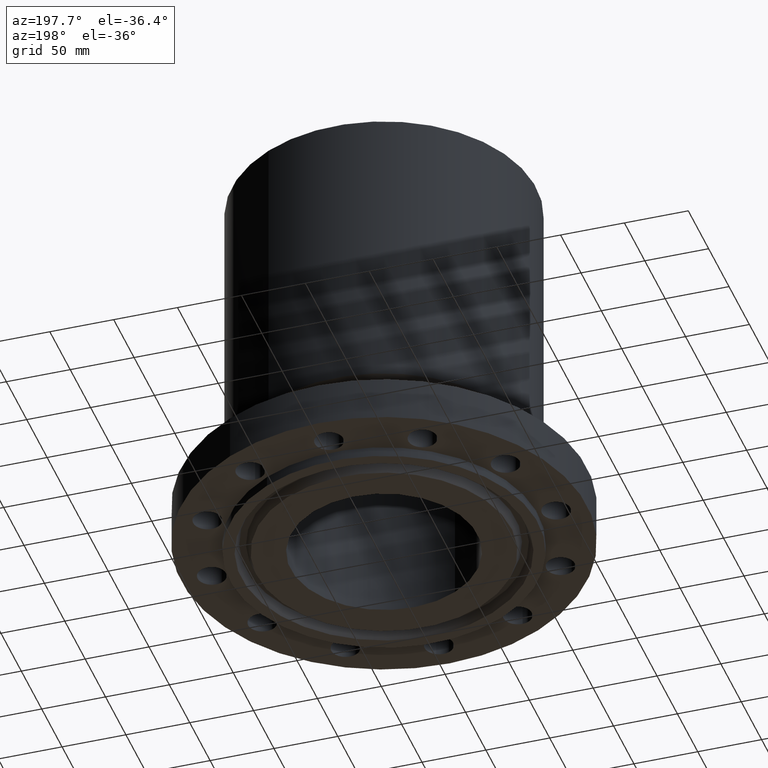
[diagram: clean part render]
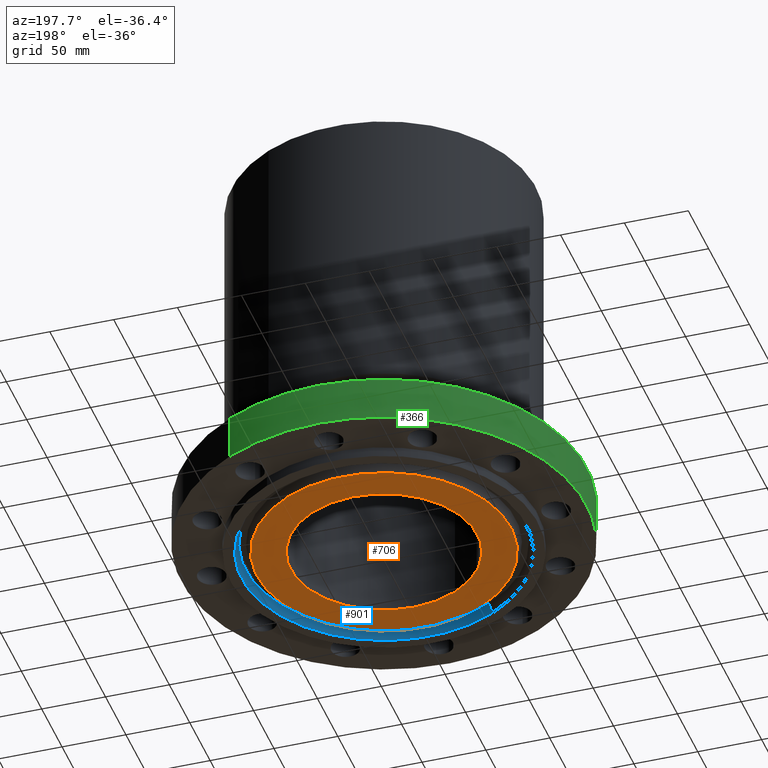
[diagram: same view with three faces highlighted in distinct colors, each labeled with its STEP entity id]
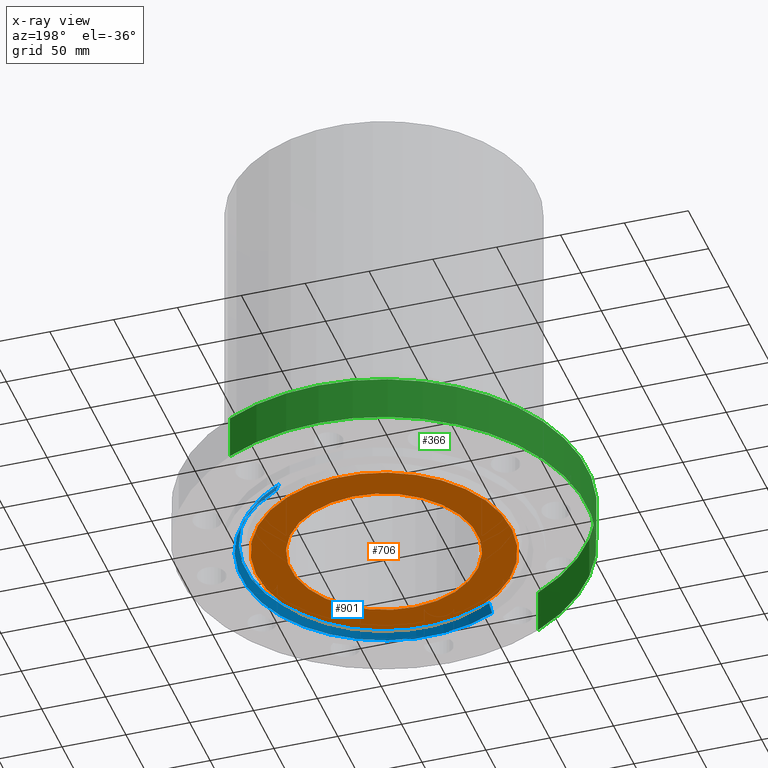
[diagram: x-ray of the same camera — body ghosted, the three highlighted faces saturated]
A machine part, auxiliary view with three faces highlighted in distinct colors.
The next image is the same camera in x-ray (body ghosted, the three faces saturated) — at least one of them is partly hidden behind the body in this view.
Their STEP definitions:

[orange] entity #706 — the highlighted planar face has unit normal (0, 0, -1).
#650=AXIS2_PLACEMENT_3D('Circle Axis2P3D',#648,#649,$) ;
#669=AXIS2_PLACEMENT_3D('Circle Axis2P3D',#667,#668,$) ;
#682=AXIS2_PLACEMENT_3D('Plane Axis2P3D',#679,#680,#681) ;
#686=AXIS2_PLACEMENT_3D('Circle Axis2P3D',#684,#685,$) ;
#695=AXIS2_PLACEMENT_3D('Circle Axis2P3D',#693,#694,$) ;
#645=CARTESIAN_POINT('Vertex',(1.38074555119,2.52743777825,-0.313000000001)) ;
#648=CARTESIAN_POINT('Axis2P3D Location',(0.,0.,-0.313000000001)) ;
#652=CARTESIAN_POINT('Vertex',(-1.38074555119,-2.52743777825,-0.313000000001)) ;
#667=CARTESIAN_POINT('Axis2P3D Location',(0.,0.,-0.313000000001)) ;
#679=CARTESIAN_POINT('Axis2P3D Location',(0.,3.92200000002,-0.313000000001)) ;
#684=CARTESIAN_POINT('Axis2P3D Location',(0.,0.,-0.313000000001)) ;
#688=CARTESIAN_POINT('Vertex',(-1.88030696241,-3.44187880775,-0.313000000001)) ;
#690=CARTESIAN_POINT('Vertex',(1.88030696241,3.44187880775,-0.313000000001)) ;
#693=CARTESIAN_POINT('Axis2P3D Location',(0.,0.,-0.313000000001)) ;
#649=DIRECTION('Axis2P3D Direction',(0.,0.,-0.0393700787402)) ;
#668=DIRECTION('Axis2P3D Direction',(0.,0.,-0.0393700787402)) ;
#680=DIRECTION('Axis2P3D Direction',(0.,0.,-0.0393700787402)) ;
#681=DIRECTION('Axis2P3D XDirection',(0.0393700787402,0.,0.)) ;
#685=DIRECTION('Axis2P3D Direction',(0.,0.,-0.0393700787402)) ;
#694=DIRECTION('Axis2P3D Direction',(0.,0.,-0.0393700787402)) ;
#699=ORIENTED_EDGE('',*,*,#692,.T.) ;
#700=ORIENTED_EDGE('',*,*,#697,.T.) ;
#703=ORIENTED_EDGE('',*,*,#654,.F.) ;
#704=ORIENTED_EDGE('',*,*,#671,.F.) ;
#705=FACE_BOUND('',#702,.T.) ;
#706=ADVANCED_FACE('PartBody',(#701,#705),#683,.T.) ;
#651=CIRCLE('generated circle',#650,2.88000000001) ;
#670=CIRCLE('generated circle',#669,2.88000000001) ;
#687=CIRCLE('generated circle',#686,3.92200000002) ;
#696=CIRCLE('generated circle',#695,3.92200000002) ;
#654=EDGE_CURVE('',#646,#653,#651,.T.) ;
#671=EDGE_CURVE('',#653,#646,#670,.T.) ;
#692=EDGE_CURVE('',#689,#691,#687,.T.) ;
#697=EDGE_CURVE('',#691,#689,#696,.T.) ;
#698=EDGE_LOOP('',(#699,#700)) ;
#702=EDGE_LOOP('',(#703,#704)) ;
#701=FACE_OUTER_BOUND('',#698,.T.) ;
#683=PLANE('',#682) ;
#646=VERTEX_POINT('',#645) ;
#653=VERTEX_POINT('',#652) ;
#689=VERTEX_POINT('',#688) ;
#691=VERTEX_POINT('',#690) ;

[blue] entity #901 — the highlighted conical surface has half-angle 23 deg.
#849=AXIS2_PLACEMENT_3D('Circle Axis2P3D',#847,#848,$) ;
#862=AXIS2_PLACEMENT_3D('Cone Axis2P3D',#859,#860,#861) ;
#892=AXIS2_PLACEMENT_3D('Circle Axis2P3D',#890,#891,$) ;
#825=CARTESIAN_POINT('Vertex',(-2.04530441643,-3.74390462143,-0.0188873350169)) ;
#832=CARTESIAN_POINT('Vertex',(2.04530441643,3.74390462143,-0.0188873350169)) ;
#847=CARTESIAN_POINT('Axis2P3D Location',(0.,0.,-0.0188873350169)) ;
#859=CARTESIAN_POINT('Axis2P3D Location',(0.,0.,-0.0188873350169)) ;
#864=CARTESIAN_POINT('Line Origine',(-2.07523097822,-3.79868482535,-0.165943667509)) ;
#868=CARTESIAN_POINT('Vertex',(-2.10515754002,-3.85346502928,-0.313000000001)) ;
#875=CARTESIAN_POINT('Vertex',(2.10515754002,3.85346502928,-0.313000000001)) ;
#878=CARTESIAN_POINT('Line Origine',(2.07523097822,3.79868482535,-0.165943667509)) ;
#890=CARTESIAN_POINT('Axis2P3D Location',(0.,0.,-0.313000000001)) ;
#848=DIRECTION('Axis2P3D Direction',(0.,0.,-0.0393700787402)) ;
#860=DIRECTION('Axis2P3D Direction',(0.,0.,-0.0393700787402)) ;
#861=DIRECTION('Axis2P3D XDirection',(0.0188750212049,0.0345504945626,0.)) ;
#865=DIRECTION('Vector Direction',(-0.00737505833565,-0.0134999537303,-0.0362403485611)) ;
#879=DIRECTION('Vector Direction',(0.00737505833565,0.0134999537303,-0.0362403485611)) ;
#891=DIRECTION('Axis2P3D Direction',(0.,0.,-0.0393700787402)) ;
#866=VECTOR('Line Direction',#865,0.0393700787402) ;
#880=VECTOR('Line Direction',#879,0.0393700787402) ;
#896=ORIENTED_EDGE('',*,*,#851,.F.) ;
#897=ORIENTED_EDGE('',*,*,#882,.T.) ;
#898=ORIENTED_EDGE('',*,*,#894,.T.) ;
#899=ORIENTED_EDGE('',*,*,#870,.F.) ;
#901=ADVANCED_FACE('PartBody',(#900),#863,.F.) ;
#850=CIRCLE('generated circle',#849,4.2661565806) ;
#893=CIRCLE('generated circle',#892,4.39100000002) ;
#863=CONICAL_SURFACE('Cone',#862,4.2661565806,0.401425727959) ;
#851=EDGE_CURVE('',#833,#826,#850,.T.) ;
#870=EDGE_CURVE('',#826,#869,#867,.T.) ;
#882=EDGE_CURVE('',#833,#876,#881,.T.) ;
#894=EDGE_CURVE('',#876,#869,#893,.T.) ;
#895=EDGE_LOOP('',(#896,#897,#898,#899)) ;
#900=FACE_OUTER_BOUND('',#895,.T.) ;
#867=LINE('Line',#864,#866) ;
#881=LINE('Line',#878,#880) ;
#826=VERTEX_POINT('',#825) ;
#833=VERTEX_POINT('',#832) ;
#869=VERTEX_POINT('',#868) ;
#876=VERTEX_POINT('',#875) ;

[green] entity #366 — the highlighted cylindrical surface (partial cylindrical patch) has radius 158.75 mm, axis along (0, 0, -1).
#82=AXIS2_PLACEMENT_3D('Circle Axis2P3D',#80,#81,$) ;
#339=AXIS2_PLACEMENT_3D('Cylinder Axis2P3D',#336,#337,#338) ;
#350=AXIS2_PLACEMENT_3D('Circle Axis2P3D',#348,#349,$) ;
#80=CARTESIAN_POINT('Axis2P3D Location',(0.,0.,0.)) ;
#84=CARTESIAN_POINT('Vertex',(-2.99640961629,-5.48489101184,1.1189649382E-015)) ;
#86=CARTESIAN_POINT('Vertex',(2.99640961629,5.48489101184,1.1189649382E-015)) ;
#336=CARTESIAN_POINT('Axis2P3D Location',(0.,0.,5.81225000002)) ;
#341=CARTESIAN_POINT('Line Origine',(-2.99640961629,-5.48489101184,0.688750000003)) ;
#345=CARTESIAN_POINT('Vertex',(-2.99640961629,-5.48489101184,1.37750000001)) ;
#348=CARTESIAN_POINT('Axis2P3D Location',(0.,0.,1.37750000001)) ;
#352=CARTESIAN_POINT('Vertex',(2.99640961629,5.48489101184,1.37750000001)) ;
#355=CARTESIAN_POINT('Line Origine',(2.99640961629,5.48489101184,0.688750000003)) ;
#81=DIRECTION('Axis2P3D Direction',(0.,0.,-0.0393700787402)) ;
#337=DIRECTION('Axis2P3D Direction',(0.,0.,-0.0393700787402)) ;
#338=DIRECTION('Axis2P3D XDirection',(0.0188750212049,0.0345504945626,0.)) ;
#342=DIRECTION('Vector Direction',(0.,0.,-0.0393700787402)) ;
#349=DIRECTION('Axis2P3D Direction',(0.,0.,-0.0393700787402)) ;
#356=DIRECTION('Vector Direction',(0.,0.,-0.0393700787402)) ;
#343=VECTOR('Line Direction',#342,0.0393700787402) ;
#357=VECTOR('Line Direction',#356,0.0393700787402) ;
#361=ORIENTED_EDGE('',*,*,#88,.F.) ;
#362=ORIENTED_EDGE('',*,*,#347,.T.) ;
#363=ORIENTED_EDGE('',*,*,#354,.T.) ;
#364=ORIENTED_EDGE('',*,*,#359,.F.) ;
#366=ADVANCED_FACE('PartBody',(#365),#340,.T.) ;
#83=CIRCLE('generated circle',#82,6.25000000003) ;
#351=CIRCLE('generated circle',#350,6.25000000003) ;
#340=CYLINDRICAL_SURFACE('generated cylinder',#339,6.25000000003) ;
#88=EDGE_CURVE('',#85,#87,#83,.T.) ;
#347=EDGE_CURVE('',#85,#346,#344,.F.) ;
#354=EDGE_CURVE('',#346,#353,#351,.T.) ;
#359=EDGE_CURVE('',#87,#353,#358,.F.) ;
#360=EDGE_LOOP('',(#361,#362,#363,#364)) ;
#365=FACE_OUTER_BOUND('',#360,.T.) ;
#344=LINE('Line',#341,#343) ;
#358=LINE('Line',#355,#357) ;
#85=VERTEX_POINT('',#84) ;
#87=VERTEX_POINT('',#86) ;
#346=VERTEX_POINT('',#345) ;
#353=VERTEX_POINT('',#352) ;